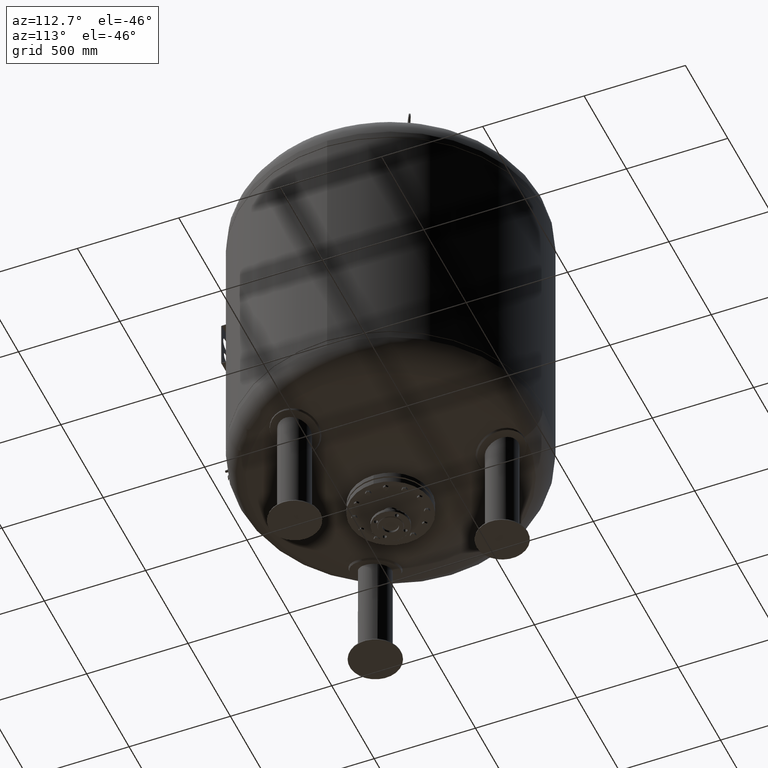
[diagram: clean part render]
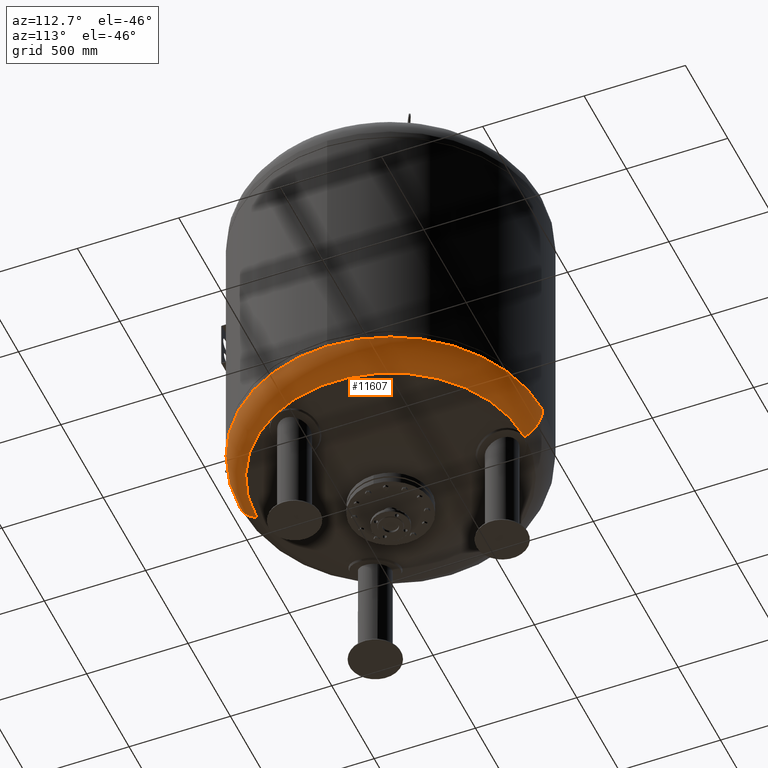
[diagram: same view with one face highlighted and labeled with its STEP entity id]
A machine part, auxiliary view. The second image highlights one B-rep face of the part: STEP entity #11607.
In plain terms, the highlighted toroidal blend (fillet) surface has major radius 591 mm and minor (blend) radius 159 mm.
Its self-contained STEP definition (entity closure, byte-faithful):
#11493=CARTESIAN_POINT('',(750.0,3.761120E-014,785.237667415898160));
#11494=VERTEX_POINT('',#11493);
#11501=CARTESIAN_POINT('',(-1.628998E-013,750.0,785.237667415898270));
#11502=VERTEX_POINT('',#11501);
#11503=CARTESIAN_POINT('',(-5.075605E-014,-5.423428E-014,785.237667415898160));
#11504=DIRECTION('',(0.0,0.0,1.0));
#11505=DIRECTION('',(-1.0,0.0,0.0));
#11506=AXIS2_PLACEMENT_3D('',#11503,#11504,#11505);
#11507=CIRCLE('',#11506,750.0);
#11508=EDGE_CURVE('',#11494,#11502,#11507,.T.);
#11525=CARTESIAN_POINT('',(-7.105427E-014,-750.0,785.237667415898040));
#11526=VERTEX_POINT('',#11525);
#11527=CARTESIAN_POINT('',(-4.647817E-014,-660.606666666666800,642.283437133770350));
#11528=VERTEX_POINT('',#11527);
#11529=CARTESIAN_POINT('',(-7.105427E-014,-591.0,785.237667415898040));
#11530=DIRECTION('',(1.0,0.0,0.0));
#11531=DIRECTION('',(0.0,-1.0,0.0));
#11532=AXIS2_PLACEMENT_3D('',#11529,#11530,#11531);
#11533=CIRCLE('',#11532,159.0);
#11534=EDGE_CURVE('',#11526,#11528,#11533,.T.);
#11544=CARTESIAN_POINT('',(-1.273765E-013,660.606666666666800,642.283437133770800));
#11545=VERTEX_POINT('',#11544);
#11546=CARTESIAN_POINT('',(-1.434285E-013,591.0,785.237667415898270));
#11547=DIRECTION('',(-1.0,0.0,0.0));
#11548=DIRECTION('',(0.0,1.0,0.0));
#11549=AXIS2_PLACEMENT_3D('',#11546,#11547,#11548);
#11550=CIRCLE('',#11549,159.0);
#11551=EDGE_CURVE('',#11502,#11545,#11550,.T.);
#11579=CARTESIAN_POINT('',(-2.617994E-014,-2.797401E-014,642.283437133770580));
#11580=DIRECTION('',(0.0,0.0,1.0));
#11581=DIRECTION('',(-1.0,0.0,0.0));
#11582=AXIS2_PLACEMENT_3D('',#11579,#11580,#11581);
#11583=CIRCLE('',#11582,660.606666666666800);
#11584=EDGE_CURVE('',#11528,#11545,#11583,.T.);
#11589=CARTESIAN_POINT('',(-7.105427E-014,-5.423428E-014,785.237667415898160));
#11590=DIRECTION('',(-1.719159E-016,-1.836970E-016,1.0));
#11591=DIRECTION('',(0.0,-1.0,0.0));
#11592=AXIS2_PLACEMENT_3D('',#11589,#11590,#11591);
#11593=TOROIDAL_SURFACE('',#11592,591.0,159.0);
#11594=ORIENTED_EDGE('',*,*,#11534,.T.);
#11595=ORIENTED_EDGE('',*,*,#11584,.T.);
#11596=ORIENTED_EDGE('',*,*,#11551,.F.);
#11597=ORIENTED_EDGE('',*,*,#11508,.F.);
#11598=CARTESIAN_POINT('',(-5.075605E-014,-5.423428E-014,785.237667415898160));
#11599=DIRECTION('',(0.0,0.0,1.0));
#11600=DIRECTION('',(-1.0,0.0,0.0));
#11601=AXIS2_PLACEMENT_3D('',#11598,#11599,#11600);
#11602=CIRCLE('',#11601,750.0);
#11603=EDGE_CURVE('',#11526,#11494,#11602,.T.);
#11604=ORIENTED_EDGE('',*,*,#11603,.F.);
#11605=EDGE_LOOP('',(#11594,#11595,#11596,#11597,#11604));
#11606=FACE_OUTER_BOUND('',#11605,.T.);
#11607=ADVANCED_FACE('',(#11606),#11593,.T.);